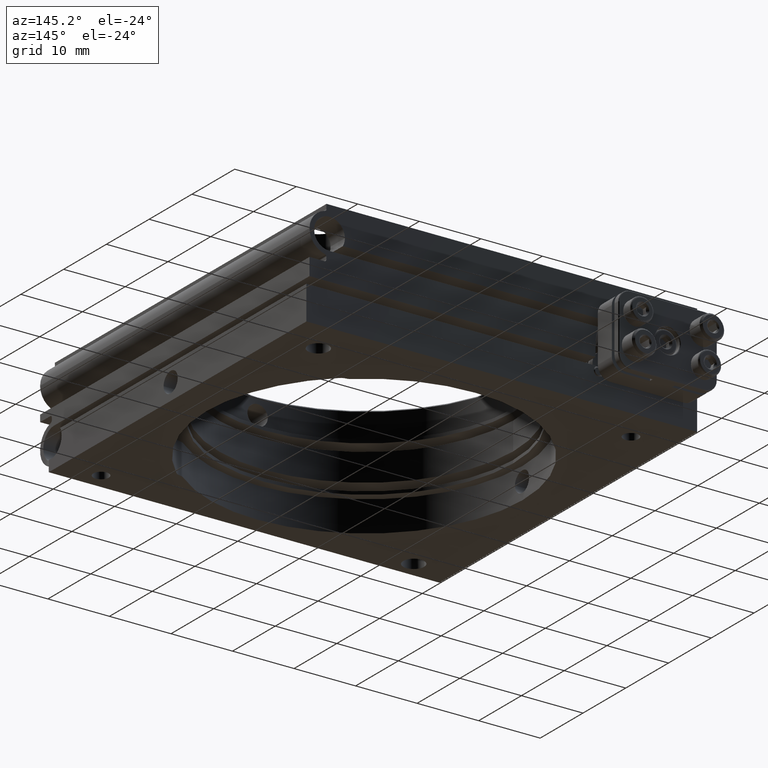
[diagram: clean part render]
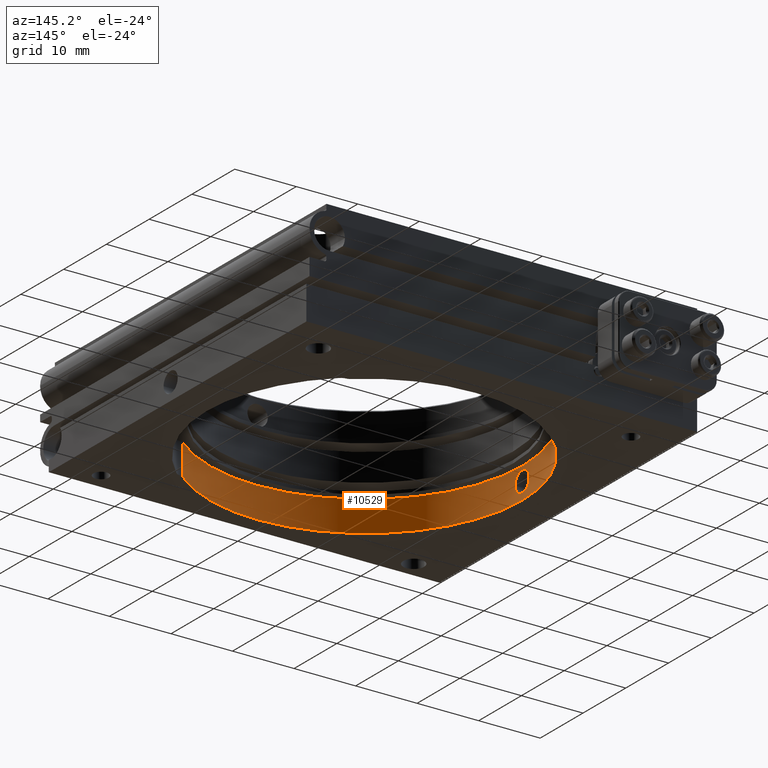
[diagram: same view with one face highlighted and labeled with its STEP entity id]
A machine part, auxiliary view. The second image highlights one B-rep face of the part: STEP entity #10529.
In plain terms, the highlighted cylindrical surface (partial cylindrical patch) has radius 25.4 mm, axis along (0, -0, -1).
Its self-contained STEP definition (entity closure, byte-faithful):
#38 = CARTESIAN_POINT ( 'NONE',  ( -1.649999999999993472, -6.357701725148514171, 25.34635082215978130 ) ) ;
#69 = VERTEX_POINT ( 'NONE', #1166 ) ;
#173 = VECTOR ( 'NONE', #5640, 1000.000000000000000 ) ;
#297 = CARTESIAN_POINT ( 'NONE',  ( -0.7307371102786053285, -7.733311440287857330, 25.38968314725494224 ) ) ;
#327 = EDGE_LOOP ( 'NONE', ( #6059, #5532, #5615, #8244 ) ) ;
#605 = DIRECTION ( 'NONE',  ( 0.000000000000000000, 0.000000000000000000, 1.000000000000000000 ) ) ;
#610 = CARTESIAN_POINT ( 'NONE',  ( 1.089733458050222037, -5.006388836366822304, 25.37672743414683652 ) ) ;
#956 = CARTESIAN_POINT ( 'NONE',  ( 1.650000000000000799, -6.249999999999998224, 25.34635082215978130 ) ) ;
#983 = CARTESIAN_POINT ( 'NONE',  ( 19.62077077395295177, -9.000000000000000000, -16.13026206346299674 ) ) ;
#1166 = CARTESIAN_POINT ( 'NONE',  ( -19.62077077395295888, -9.000000000000000000, -16.13026206346298963 ) ) ;
#1307 = CARTESIAN_POINT ( 'NONE',  ( 0.4330890948882279434, -7.856589943754577199, 25.39708419064696088 ) ) ;
#1686 = CARTESIAN_POINT ( 'NONE',  ( 1.650000000000000799, -6.249999999999998224, 25.34635082215978130 ) ) ;
#1797 = FACE_BOUND ( 'NONE', #7292, .T. ) ;
#1830 = CARTESIAN_POINT ( 'NONE',  ( -0.4282547629764456021, -4.652921130354837231, 25.39660843793497591 ) ) ;
#1897 = VERTEX_POINT ( 'NONE', #983 ) ;
#1919 = VECTOR ( 'NONE', #3918, 1000.000000000000000 ) ;
#1999 = DIRECTION ( 'NONE',  ( 0.000000000000000000, 0.000000000000000000, -1.000000000000000000 ) ) ;
#2226 = CIRCLE ( 'NONE', #8694, 25.39999999999999858 ) ;
#2254 = CARTESIAN_POINT ( 'NONE',  ( -1.006110302457725592, -7.562173834475365730, 25.38022345938938784 ) ) ;
#2327 = CARTESIAN_POINT ( 'NONE',  ( -0.5309283807824775048, -7.815983591135890585, 25.39464711502837346 ) ) ;
#2386 = CARTESIAN_POINT ( 'NONE',  ( 1.242622989730315597, -7.340857410414074913, 25.36970030129139531 ) ) ;
#2628 = CARTESIAN_POINT ( 'NONE',  ( -1.606763104063863690, -5.817567609219830516, 25.34926214677294709 ) ) ;
#2696 = CARTESIAN_POINT ( 'NONE',  ( -0.8274075583103720488, -4.818381335674146726, 25.38667855658012229 ) ) ;
#2709 = EDGE_CURVE ( 'NONE', #2819, #1897, #9853, .T. ) ;
#2819 = VERTEX_POINT ( 'NONE', #4938 ) ;
#2829 = CARTESIAN_POINT ( 'NONE',  ( -1.006749765630590598, -4.938287311566278426, 25.38019909914177319 ) ) ;
#3263 = CARTESIAN_POINT ( 'NONE',  ( -1.311854566582630888, -7.256523771719536775, 25.36617073171583669 ) ) ;
#3349 = B_SPLINE_CURVE_WITH_KNOTS ( 'NONE', 3,
 ( #6963, #6691, #2628, #3848, #6825, #3769, #2829, #2696, #4721, #12894, #1830, #10783, #6756, #9047, #9844, #3636, #12017, #13161, #610, #4652, #8843, #12957, #5961, #1686 ),
 .UNSPECIFIED., .F., .F.,
 ( 4, 2, 2, 2, 2, 2, 2, 2, 2, 2, 2, 4 ),
 ( 0.005160010380088620764, 0.005804863695093909898, 0.006449717010099199899, 0.006772143667601844899, 0.007094570325104489032, 0.007416996982607134033, 0.007739423640109778166, 0.008384276955115068167, 0.008706703612617713167, 0.009029130270120356433, 0.009673983585125646434, 0.01031883690013093643 ),
 .UNSPECIFIED. ) ;
#3399 = CARTESIAN_POINT ( 'NONE',  ( -1.483002151610388175, -6.981377182582901852, 25.35670375484738059 ) ) ;
#3491 = EDGE_CURVE ( 'NONE', #69, #1897, #3815, .T. ) ;
#3636 = CARTESIAN_POINT ( 'NONE',  ( 0.7306691606157375007, -4.766646449484877479, 25.38968555338292532 ) ) ;
#3769 = CARTESIAN_POINT ( 'NONE',  ( -1.091540251105116210, -5.007982166899809684, 25.37664927125799963 ) ) ;
#3815 = CIRCLE ( 'NONE', #5560, 25.39999999999999858 ) ;
#3848 = CARTESIAN_POINT ( 'NONE',  ( -1.442389927192698318, -5.420423756903659296, 25.35914608886366395 ) ) ;
#3918 = DIRECTION ( 'NONE',  ( -0.000000000000000000, -1.000000000000000000, -0.000000000000000000 ) ) ;
#4018 = VERTEX_POINT ( 'NONE', #8647 ) ;
#4212 = CARTESIAN_POINT ( 'NONE',  ( -1.243524775099684954, -7.339959468087683625, 25.36965892341426354 ) ) ;
#4347 = CARTESIAN_POINT ( 'NONE',  ( 1.432074646435703258, -7.076613381550527215, 25.35966794878930486 ) ) ;
#4414 = CARTESIAN_POINT ( 'NONE',  ( -1.089444115181723571, -7.493976297304985046, 25.37674248749346262 ) ) ;
#4428 = EDGE_CURVE ( 'NONE', #4018, #2819, #2226, .T. ) ;
#4652 = CARTESIAN_POINT ( 'NONE',  ( 1.318246553024915890, -5.234580397536832130, 25.36622721517209200 ) ) ;
#4721 = CARTESIAN_POINT ( 'NONE',  ( -0.7326982249559981231, -4.767661954064495333, 25.38962612421532938 ) ) ;
#4785 = CARTESIAN_POINT ( 'NONE',  ( 0.000000000000000000, -3.999999999999999112, 0.000000000000000000 ) ) ;
#4938 = CARTESIAN_POINT ( 'NONE',  ( 19.62077077395295177, -3.999999999999999112, -16.13026206346299674 ) ) ;
#5235 = VERTEX_POINT ( 'NONE', #956 ) ;
#5532 = ORIENTED_EDGE ( 'NONE', *, *, #2709, .T. ) ;
#5560 = AXIS2_PLACEMENT_3D ( 'NONE', #6715, #11629, #10814 ) ;
#5615 = ORIENTED_EDGE ( 'NONE', *, *, #3491, .F. ) ;
#5640 = DIRECTION ( 'NONE',  ( 0.000000000000000000, 1.000000000000000000, 0.000000000000000000 ) ) ;
#5889 = DIRECTION ( 'NONE',  ( -0.000000000000000000, 1.000000000000000000, -0.000000000000000000 ) ) ;
#5928 = FACE_OUTER_BOUND ( 'NONE', #327, .T. ) ;
#5961 = CARTESIAN_POINT ( 'NONE',  ( 1.650000000000001021, -6.031949569347986539, 25.34635082215978841 ) ) ;
#6059 = ORIENTED_EDGE ( 'NONE', *, *, #4428, .T. ) ;
#6063 = CARTESIAN_POINT ( 'NONE',  ( 0.000000000000000000, -3.999999999999999112, 0.000000000000000000 ) ) ;
#6260 = CARTESIAN_POINT ( 'NONE',  ( 1.650000000000000799, -6.359050234697360082, 25.34635082215978130 ) ) ;
#6324 = CARTESIAN_POINT ( 'NONE',  ( 1.312312047450675534, -7.255964495217478216, 25.36614738891049825 ) ) ;
#6373 = CARTESIAN_POINT ( 'NONE',  ( -1.649999999999993916, -6.249999999999998224, 25.34635082215978130 ) ) ;
#6521 = CARTESIAN_POINT ( 'NONE',  ( -1.649999999999993916, -6.249999999999998224, 25.34635082215978130 ) ) ;
#6691 = CARTESIAN_POINT ( 'NONE',  ( -1.649999999999993916, -6.034645969669178989, 25.34635082215977775 ) ) ;
#6715 = CARTESIAN_POINT ( 'NONE',  ( 0.000000000000000000, -9.000000000000000000, 0.000000000000000000 ) ) ;
#6756 = CARTESIAN_POINT ( 'NONE',  ( -0.1102148379690818386, -4.600088941356194283, 25.39999422231536386 ) ) ;
#6822 = AXIS2_PLACEMENT_3D ( 'NONE', #6063, #11231, #1999 ) ;
#6825 = CARTESIAN_POINT ( 'NONE',  ( -1.319542739143200194, -5.236303482466050596, 25.36615777733122812 ) ) ;
#6865 = EDGE_CURVE ( 'NONE', #7939, #5235, #3349, .T. ) ;
#6963 = CARTESIAN_POINT ( 'NONE',  ( -1.649999999999993916, -6.249999999999998224, 25.34635082215978130 ) ) ;
#7239 = ORIENTED_EDGE ( 'NONE', *, *, #12943, .F. ) ;
#7275 = CARTESIAN_POINT ( 'NONE',  ( 1.597358533880378850, -6.677210929069904211, 25.34973150122142016 ) ) ;
#7292 = EDGE_LOOP ( 'NONE', ( #7239, #12293 ) ) ;
#7334 = CARTESIAN_POINT ( 'NONE',  ( 1.639295518123375928, -6.466272207964532726, 25.34705410247979884 ) ) ;
#7400 = CARTESIAN_POINT ( 'NONE',  ( 1.650000000000000799, -6.249999999999998224, 25.34635082215978130 ) ) ;
#7535 = CARTESIAN_POINT ( 'NONE',  ( -1.597013167564621750, -6.678573640301707748, 25.34975336820137670 ) ) ;
#7939 = VERTEX_POINT ( 'NONE', #6373 ) ;
#8244 = ORIENTED_EDGE ( 'NONE', *, *, #12005, .T. ) ;
#8343 = CARTESIAN_POINT ( 'NONE',  ( -1.565815072250612783, -6.781442493969717766, 25.35172467214577452 ) ) ;
#8403 = CARTESIAN_POINT ( 'NONE',  ( 0.8302145311830910757, -7.692026783280003777, 25.38720534803178097 ) ) ;
#8469 = CARTESIAN_POINT ( 'NONE',  ( -1.639206645530288942, -6.467089833445923475, 25.34705995691139080 ) ) ;
#8535 = CARTESIAN_POINT ( 'NONE',  ( 0.2158913671262393252, -7.899922839015183662, 25.39999498757413932 ) ) ;
#8596 = LINE ( 'NONE', #11763, #173 ) ;
#8647 = CARTESIAN_POINT ( 'NONE',  ( -19.62077077395295888, -3.999999999999999112, -16.13026206346298963 ) ) ;
#8694 = AXIS2_PLACEMENT_3D ( 'NONE', #4785, #5889, #605 ) ;
#8843 = CARTESIAN_POINT ( 'NONE',  ( 1.441241325087403435, -5.418432862346482359, 25.35921227632827524 ) ) ;
#9047 = CARTESIAN_POINT ( 'NONE',  ( 0.2164106925180744601, -4.599823748826039171, 25.40001144938352695 ) ) ;
#9280 = CARTESIAN_POINT ( 'NONE',  ( -0.4280556321415911469, -7.847157290297645638, 25.39661334042909502 ) ) ;
#9534 = CARTESIAN_POINT ( 'NONE',  ( -0.1070598909973857205, -7.900038421981592229, 25.40000249591597026 ) ) ;
#9844 = CARTESIAN_POINT ( 'NONE',  ( 0.4306128986629766398, -4.642538260515064685, 25.39713787455686500 ) ) ;
#9853 = LINE ( 'NONE', #9989, #1919 ) ;
#9989 = CARTESIAN_POINT ( 'NONE',  ( 19.62077077395295177, -3.999999999999999112, -16.13026206346299674 ) ) ;
#10355 = CARTESIAN_POINT ( 'NONE',  ( -0.8273325911866429294, -7.681635042932996704, 25.38668000296240379 ) ) ;
#10529 = ADVANCED_FACE ( 'NONE', ( #1797, #5928 ), #13133, .F. ) ;
#10615 = CARTESIAN_POINT ( 'NONE',  ( 1.482767923826025847, -6.981845238584132751, 25.35671748059760233 ) ) ;
#10783 = CARTESIAN_POINT ( 'NONE',  ( -0.2173472436332306856, -4.610846793748637928, 25.39928901499974145 ) ) ;
#10814 = DIRECTION ( 'NONE',  ( 0.000000000000000000, 0.000000000000000000, 1.000000000000000000 ) ) ;
#11231 = DIRECTION ( 'NONE',  ( -0.000000000000000000, -1.000000000000000000, -0.000000000000000000 ) ) ;
#11433 = CARTESIAN_POINT ( 'NONE',  ( -0.2164051201363280663, -7.889302247341177576, 25.39929860471442424 ) ) ;
#11629 = DIRECTION ( 'NONE',  ( -0.000000000000000000, 1.000000000000000000, -0.000000000000000000 ) ) ;
#11630 = CARTESIAN_POINT ( 'NONE',  ( 1.014287164376535211, -7.569109050089270596, 25.38019784469743811 ) ) ;
#11763 = CARTESIAN_POINT ( 'NONE',  ( -19.62077077395295888, -3.999999999999999112, -16.13026206346299318 ) ) ;
#11958 = B_SPLINE_CURVE_WITH_KNOTS ( 'NONE', 3,
 ( #7400, #6260, #7334, #7275, #12509, #10615, #4347, #6324, #2386, #11630, #8403, #1307, #8535, #9534, #11433, #9280, #2327, #297, #10355, #2254, #4414, #4212, #3263, #12648, #3399, #8343, #7535, #8469, #38, #6521 ),
 .UNSPECIFIED., .F., .F.,
 ( 4, 2, 2, 2, 2, 2, 2, 2, 2, 2, 2, 2, 2, 2, 4 ),
 ( 0.000000000000000000, 0.0003225006487555392314, 0.0006450012975110784629, 0.0009675019462666176401, 0.001290002595022156926, 0.001935003892533234413, 0.002580005190044312117, 0.002902505838799850860, 0.003225006487555389170, 0.003547507136310927914, 0.003870007785066466657, 0.004192508433822005401, 0.004515009082577544144, 0.004837509731333082888, 0.005160010380088620764 ),
 .UNSPECIFIED. ) ;
#12005 = EDGE_CURVE ( 'NONE', #69, #4018, #8596, .T. ) ;
#12017 = CARTESIAN_POINT ( 'NONE',  ( 0.8254657306630098779, -4.817270449762490969, 25.38674169557917537 ) ) ;
#12293 = ORIENTED_EDGE ( 'NONE', *, *, #6865, .F. ) ;
#12509 = CARTESIAN_POINT ( 'NONE',  ( 1.565614906376828097, -6.782022681937802666, 25.35173706221532797 ) ) ;
#12648 = CARTESIAN_POINT ( 'NONE',  ( -1.431346075107241100, -7.077829040427622509, 25.35970876030906496 ) ) ;
#12894 = CARTESIAN_POINT ( 'NONE',  ( -0.5331464163424856073, -4.684775520884391753, 25.39460014087703144 ) ) ;
#12943 = EDGE_CURVE ( 'NONE', #5235, #7939, #11958, .T. ) ;
#12957 = CARTESIAN_POINT ( 'NONE',  ( 1.606156781253281984, -5.815326725460310264, 25.34930145441985516 ) ) ;
#13133 = CYLINDRICAL_SURFACE ( 'NONE', #6822, 25.39999999999999858 ) ;
#13161 = CARTESIAN_POINT ( 'NONE',  ( 1.004765976543583461, -4.936777639162654552, 25.38027763683718163 ) ) ;